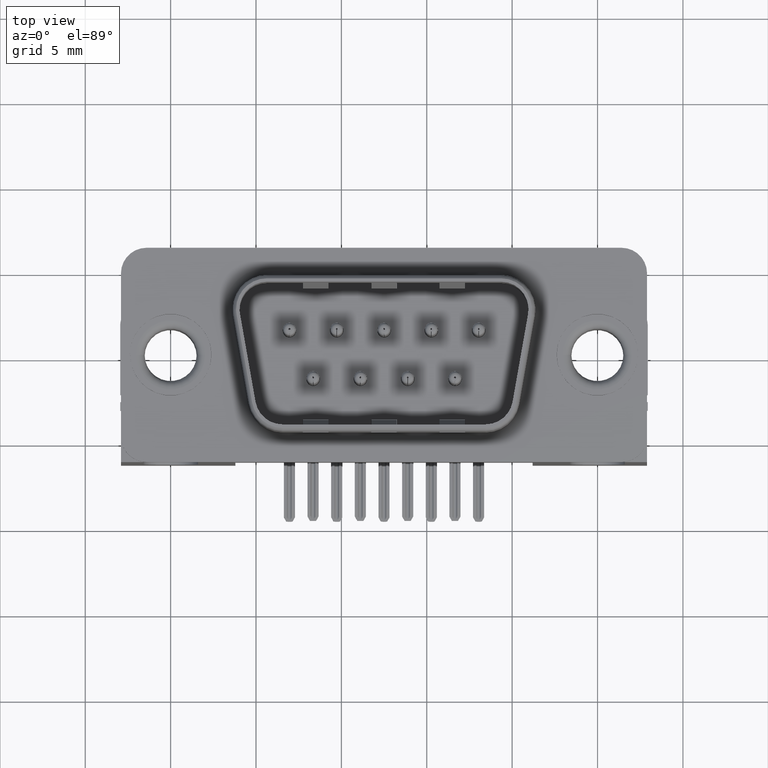
[diagram: clean part render]
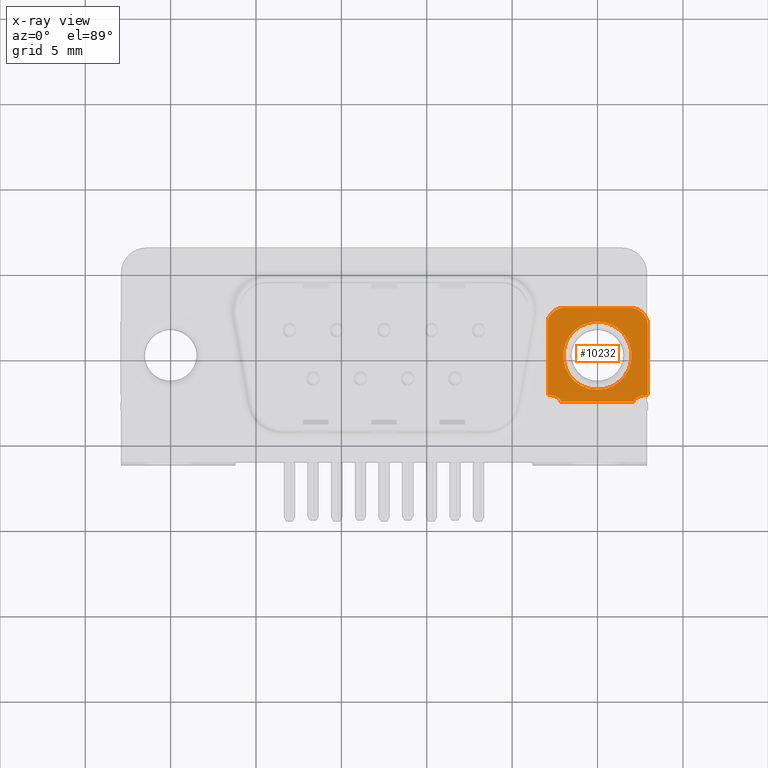
[diagram: x-ray — body ghosted, one internal face saturated and labeled with its STEP entity id]
A machine part, top view, then the same camera in x-ray: the body is ghosted and one INTERNAL B-rep face — a face not visible from any outside direction — is saturated and labeled: STEP entity #10232.
In plain terms, the highlighted planar face has unit normal (0, 0, 1).
Its self-contained STEP definition (entity closure, byte-faithful):
#40 = CARTESIAN_POINT ( 'NONE',  ( -2.905000000000004700, -2.297293112791894700, -2.500021195190501400 ) ) ;
#92 = VERTEX_POINT ( 'NONE', #495 ) ;
#339 = CIRCLE ( 'NONE', #8091, 2.000000000000000000 ) ;
#415 = DIRECTION ( 'NONE',  ( 0.0000000000000000000, -1.000000000000000000, 0.0000000000000000000 ) ) ;
#441 = VERTEX_POINT ( 'NONE', #5374 ) ;
#495 = CARTESIAN_POINT ( 'NONE',  ( 0.0000000000000000000, -2.000000000000000000, -2.500000000000000000 ) ) ;
#826 = ORIENTED_EDGE ( 'NONE', *, *, #5103, .F. ) ;
#1061 = DIRECTION ( 'NONE',  ( -0.0000000000000000000, -0.0000000000000000000, -1.000000000000000000 ) ) ;
#1168 = CARTESIAN_POINT ( 'NONE',  ( -1.950000000000000400, 1.800000000000000300, -2.500000000000000000 ) ) ;
#1379 = VECTOR ( 'NONE', #4116, 1000.000000000000000 ) ;
#1546 = ORIENTED_EDGE ( 'NONE', *, *, #2206, .F. ) ;
#1687 = CARTESIAN_POINT ( 'NONE',  ( 12.49500000000000600, 2.799999999999999800, -2.500000000000000000 ) ) ;
#1870 = ORIENTED_EDGE ( 'NONE', *, *, #13576, .T. ) ;
#1904 = CARTESIAN_POINT ( 'NONE',  ( 2.950000000000494000, 1.800000000000000300, -2.500000000000000000 ) ) ;
#1917 = CARTESIAN_POINT ( 'NONE',  ( 0.0000000000000000000, 0.0000000000000000000, -2.500000000000000000 ) ) ;
#2206 = EDGE_CURVE ( 'NONE', #12060, #2777, #7102, .T. ) ;
#2308 = CARTESIAN_POINT ( 'NONE',  ( -2.904999999999983800, 2.096605798999627600, -2.500021195190501400 ) ) ;
#2323 = FACE_OUTER_BOUND ( 'NONE', #8622, .T. ) ;
#2435 = CARTESIAN_POINT ( 'NONE',  ( -2.149999999999999000, -2.699749197498457800, -2.500021533221965500 ) ) ;
#2777 = VERTEX_POINT ( 'NONE', #8294 ) ;
#2844 = CARTESIAN_POINT ( 'NONE',  ( -2.149999999999999000, -2.699749197498457800, -2.500021533221965500 ) ) ;
#2856 = EDGE_CURVE ( 'NONE', #2777, #4747, #4335, .T. ) ;
#3029 = DIRECTION ( 'NONE',  ( 1.000000000000000000, 0.0000000000000000000, 0.0000000000000000000 ) ) ;
#3044 = EDGE_CURVE ( 'NONE', #13482, #9226, #4489, .T. ) ;
#3140 = CARTESIAN_POINT ( 'NONE',  ( -2.867470740750000000, -3.296588642001999900, -2.500000000000000000 ) ) ;
#3193 = CIRCLE ( 'NONE', #3198, 1.000000000000000000 ) ;
#3198 = AXIS2_PLACEMENT_3D ( 'NONE', #3140, #10652, #4237 ) ;
#3286 = CARTESIAN_POINT ( 'NONE',  ( 2.150000000000512800, -2.600000000000492600, -2.500000000000000000 ) ) ;
#3446 = CARTESIAN_POINT ( 'NONE',  ( -2.149999999999999000, -3.200000000000000200, -2.500000000000000000 ) ) ;
#3592 = CARTESIAN_POINT ( 'NONE',  ( 2.449293598294706400E-016, 2.000000000000000000, -2.500000000000000000 ) ) ;
#3599 = DIRECTION ( 'NONE',  ( 0.0000000000000000000, 0.0000000000000000000, -1.000000000000000000 ) ) ;
#3613 = CARTESIAN_POINT ( 'NONE',  ( 2.950000000000993600, 0.0000000000000000000, -2.500000000000000000 ) ) ;
#3933 = DIRECTION ( 'NONE',  ( 0.0000000000000000000, 1.000000000000000000, 0.0000000000000000000 ) ) ;
#4036 = CARTESIAN_POINT ( 'NONE',  ( 2.867470740751998400, -3.296588642001999900, -2.500000000000000000 ) ) ;
#4116 = DIRECTION ( 'NONE',  ( 1.000000000000000000, 0.0000000000000000000, 0.0000000000000000000 ) ) ;
#4202 = AXIS2_PLACEMENT_3D ( 'NONE', #5450, #6538, #415 ) ;
#4237 = DIRECTION ( 'NONE',  ( 0.0000000000000000000, -1.000000000000000000, 0.0000000000000000000 ) ) ;
#4335 = LINE ( 'NONE', #1687, #1379 ) ;
#4450 = VERTEX_POINT ( 'NONE', #6066 ) ;
#4489 = LINE ( 'NONE', #3446, #12700 ) ;
#4576 = CARTESIAN_POINT ( 'NONE',  ( 0.7166666666666657900, -2.699749211688915900, -2.500084843656781100 ) ) ;
#4747 = VERTEX_POINT ( 'NONE', #13428 ) ;
#4878 = FACE_BOUND ( 'NONE', #11536, .T. ) ;
#4927 = VERTEX_POINT ( 'NONE', #3286 ) ;
#4986 = EDGE_CURVE ( 'NONE', #4450, #12060, #6157, .T. ) ;
#5072 = DIRECTION ( 'NONE',  ( -0.0000000000000000000, -0.0000000000000000000, -1.000000000000000000 ) ) ;
#5103 = EDGE_CURVE ( 'NONE', #5351, #441, #10601, .T. ) ;
#5109 = DIRECTION ( 'NONE',  ( 0.0000000000000000000, -1.000000000000000000, 0.0000000000000000000 ) ) ;
#5315 = EDGE_CURVE ( 'NONE', #441, #4927, #7602, .T. ) ;
#5351 = VERTEX_POINT ( 'NONE', #1904 ) ;
#5374 = CARTESIAN_POINT ( 'NONE',  ( 2.950000000000993600, -2.299999999999895000, -2.500000000000000000 ) ) ;
#5450 = CARTESIAN_POINT ( 'NONE',  ( 12.49500000000000600, 0.0000000000000000000, -2.500000000000000000 ) ) ;
#5709 = EDGE_CURVE ( 'NONE', #9226, #4450, #3193, .T. ) ;
#5784 = EDGE_CURVE ( 'NONE', #4747, #5351, #13633, .T. ) ;
#6020 = DIRECTION ( 'NONE',  ( 0.0000000000000000000, 1.000000000000000000, 0.0000000000000000000 ) ) ;
#6066 = CARTESIAN_POINT ( 'NONE',  ( -2.905000000000004700, -2.297293112791894700, -2.500021195190501400 ) ) ;
#6134 = VERTEX_POINT ( 'NONE', #8230 ) ;
#6157 = B_SPLINE_CURVE_WITH_KNOTS ( 'NONE', 3,
 ( #40, #7719, #8781, #2308 ),
 .UNSPECIFIED., .F., .F.,
 ( 4, 4 ),
 ( 0.0000000000000000000, 1.000000000000000000 ),
 .UNSPECIFIED. ) ;
#6538 = DIRECTION ( 'NONE',  ( 0.0000000000000000000, 0.0000000000000000000, 1.000000000000000000 ) ) ;
#6573 = AXIS2_PLACEMENT_3D ( 'NONE', #11509, #5072, #12572 ) ;
#6832 = VECTOR ( 'NONE', #8237, 1000.000000000000000 ) ;
#7040 = ORIENTED_EDGE ( 'NONE', *, *, #13471, .F. ) ;
#7102 = CIRCLE ( 'NONE', #12331, 1.000000000000000200 ) ;
#7550 = AXIS2_PLACEMENT_3D ( 'NONE', #7574, #1061, #8668 ) ;
#7574 = CARTESIAN_POINT ( 'NONE',  ( 1.949999999999993500, 1.800000000000000300, -2.500000000000000000 ) ) ;
#7602 = CIRCLE ( 'NONE', #10729, 1.000000000000000000 ) ;
#7719 = CARTESIAN_POINT ( 'NONE',  ( -2.905000000000001100, -0.8326601421946004900, -2.500084780762000100 ) ) ;
#7894 = CARTESIAN_POINT ( 'NONE',  ( -2.149999999999610400, -2.599999999999359300, -2.500000000000000000 ) ) ;
#8091 = AXIS2_PLACEMENT_3D ( 'NONE', #1917, #9498, #3029 ) ;
#8230 = CARTESIAN_POINT ( 'NONE',  ( 2.149999999999999000, -2.699749197498457800, -2.500021533221966000 ) ) ;
#8237 = DIRECTION ( 'NONE',  ( 0.0000000000000000000, -1.000000000000000000, 0.0000000000000000000 ) ) ;
#8240 = EDGE_CURVE ( 'NONE', #14027, #92, #10190, .T. ) ;
#8294 = CARTESIAN_POINT ( 'NONE',  ( -1.950000020320003000, 2.799999999999999800, -2.500000000000000000 ) ) ;
#8545 = ORIENTED_EDGE ( 'NONE', *, *, #8240, .T. ) ;
#8622 = EDGE_LOOP ( 'NONE', ( #7040, #10418, #826, #9044, #13193, #1546, #9291, #11703, #12771, #10105 ) ) ;
#8668 = DIRECTION ( 'NONE',  ( 0.0000000000000000000, -1.000000000000000000, 0.0000000000000000000 ) ) ;
#8781 = CARTESIAN_POINT ( 'NONE',  ( -2.905000000000001100, 0.6319728284026934200, -2.500084780762000100 ) ) ;
#8890 = CARTESIAN_POINT ( 'NONE',  ( -0.7166666666666675600, -2.699749211688915900, -2.500084843656781100 ) ) ;
#9044 = ORIENTED_EDGE ( 'NONE', *, *, #5784, .F. ) ;
#9226 = VERTEX_POINT ( 'NONE', #7894 ) ;
#9291 = ORIENTED_EDGE ( 'NONE', *, *, #4986, .F. ) ;
#9498 = DIRECTION ( 'NONE',  ( -0.0000000000000000000, -0.0000000000000000000, -1.000000000000000000 ) ) ;
#9681 = LINE ( 'NONE', #11409, #6832 ) ;
#9711 = EDGE_CURVE ( 'NONE', #6134, #13482, #12581, .T. ) ;
#10032 = DIRECTION ( 'NONE',  ( 0.0000000000000000000, -1.000000000000000000, 0.0000000000000000000 ) ) ;
#10105 = ORIENTED_EDGE ( 'NONE', *, *, #9711, .F. ) ;
#10190 = CIRCLE ( 'NONE', #6573, 2.000000000000000000 ) ;
#10232 = ADVANCED_FACE ( 'NONE', ( #2323, #4878 ), #12938, .T. ) ;
#10418 = ORIENTED_EDGE ( 'NONE', *, *, #5315, .F. ) ;
#10601 = LINE ( 'NONE', #3613, #13481 ) ;
#10652 = DIRECTION ( 'NONE',  ( 0.0000000000000000000, 0.0000000000000000000, 1.000000000000000000 ) ) ;
#10729 = AXIS2_PLACEMENT_3D ( 'NONE', #4036, #11545, #5109 ) ;
#10911 = CARTESIAN_POINT ( 'NONE',  ( -2.904999999999983800, 2.096605798999627600, -2.500021195190501400 ) ) ;
#11409 = CARTESIAN_POINT ( 'NONE',  ( 2.149999999999999000, -2.600000000000000500, -2.500000000000000000 ) ) ;
#11509 = CARTESIAN_POINT ( 'NONE',  ( 0.0000000000000000000, 0.0000000000000000000, -2.500000000000000000 ) ) ;
#11536 = EDGE_LOOP ( 'NONE', ( #1870, #8545 ) ) ;
#11545 = DIRECTION ( 'NONE',  ( 0.0000000000000000000, 0.0000000000000000000, 1.000000000000000000 ) ) ;
#11703 = ORIENTED_EDGE ( 'NONE', *, *, #5709, .F. ) ;
#12060 = VERTEX_POINT ( 'NONE', #10911 ) ;
#12331 = AXIS2_PLACEMENT_3D ( 'NONE', #1168, #3599, #3933 ) ;
#12572 = DIRECTION ( 'NONE',  ( 1.000000000000000000, 0.0000000000000000000, 0.0000000000000000000 ) ) ;
#12581 = B_SPLINE_CURVE_WITH_KNOTS ( 'NONE', 3,
 ( #13154, #4576, #8890, #2435 ),
 .UNSPECIFIED., .F., .F.,
 ( 4, 4 ),
 ( 0.0000000000000000000, 1.000000000000000000 ),
 .UNSPECIFIED. ) ;
#12700 = VECTOR ( 'NONE', #6020, 1000.000000000000000 ) ;
#12771 = ORIENTED_EDGE ( 'NONE', *, *, #3044, .F. ) ;
#12938 = PLANE ( 'NONE',  #4202 ) ;
#13154 = CARTESIAN_POINT ( 'NONE',  ( 2.149999999999999000, -2.699749197498457800, -2.500021533221966000 ) ) ;
#13193 = ORIENTED_EDGE ( 'NONE', *, *, #2856, .F. ) ;
#13428 = CARTESIAN_POINT ( 'NONE',  ( 1.950000030607496000, 2.799999999999999400, -2.500000000000000000 ) ) ;
#13471 = EDGE_CURVE ( 'NONE', #4927, #6134, #9681, .T. ) ;
#13481 = VECTOR ( 'NONE', #10032, 1000.000000000000000 ) ;
#13482 = VERTEX_POINT ( 'NONE', #2844 ) ;
#13576 = EDGE_CURVE ( 'NONE', #92, #14027, #339, .T. ) ;
#13633 = CIRCLE ( 'NONE', #7550, 1.000000000000000000 ) ;
#14027 = VERTEX_POINT ( 'NONE', #3592 ) ;